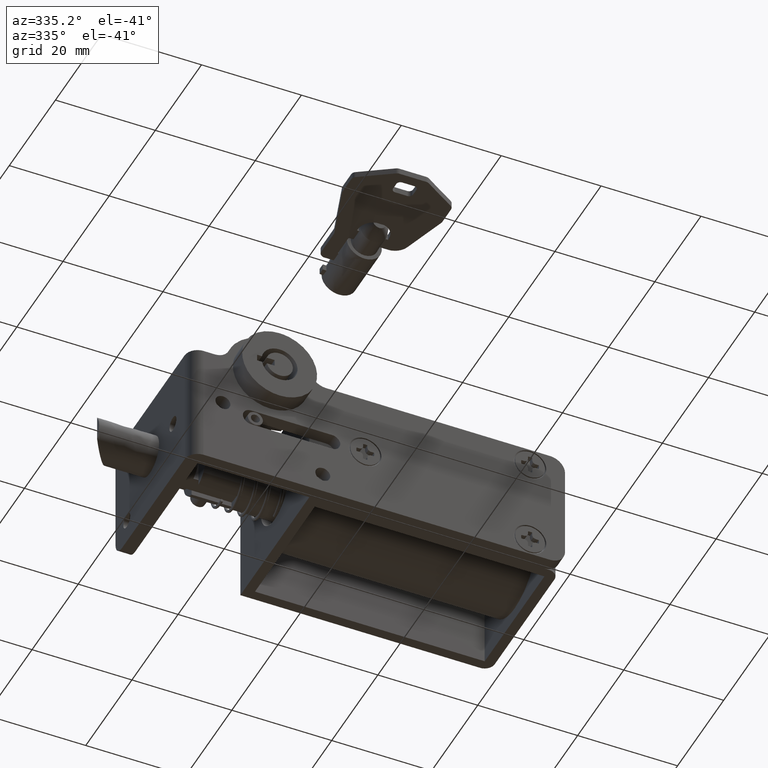
[diagram: clean part render]
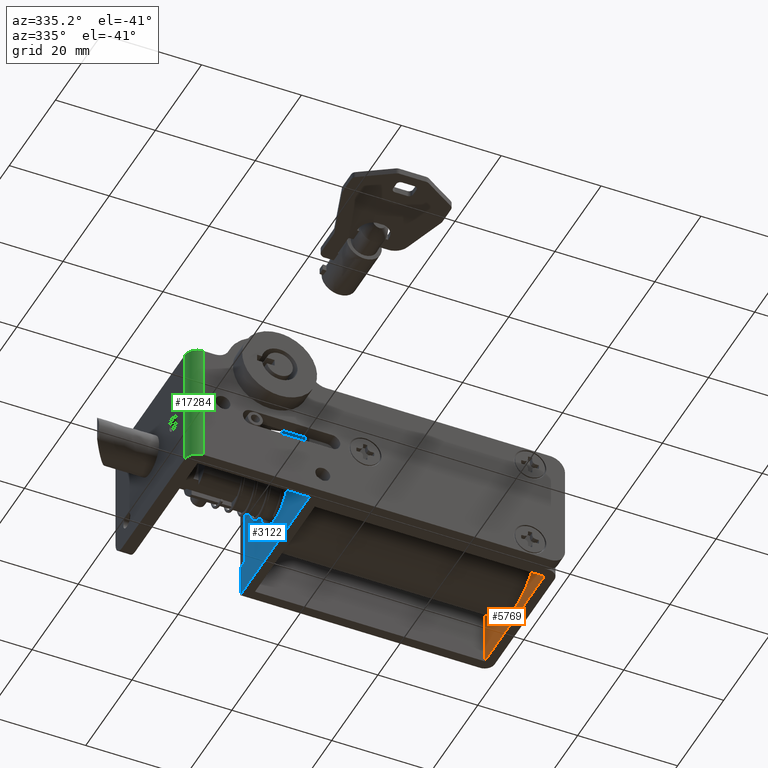
[diagram: same view with three faces highlighted in distinct colors, each labeled with its STEP entity id]
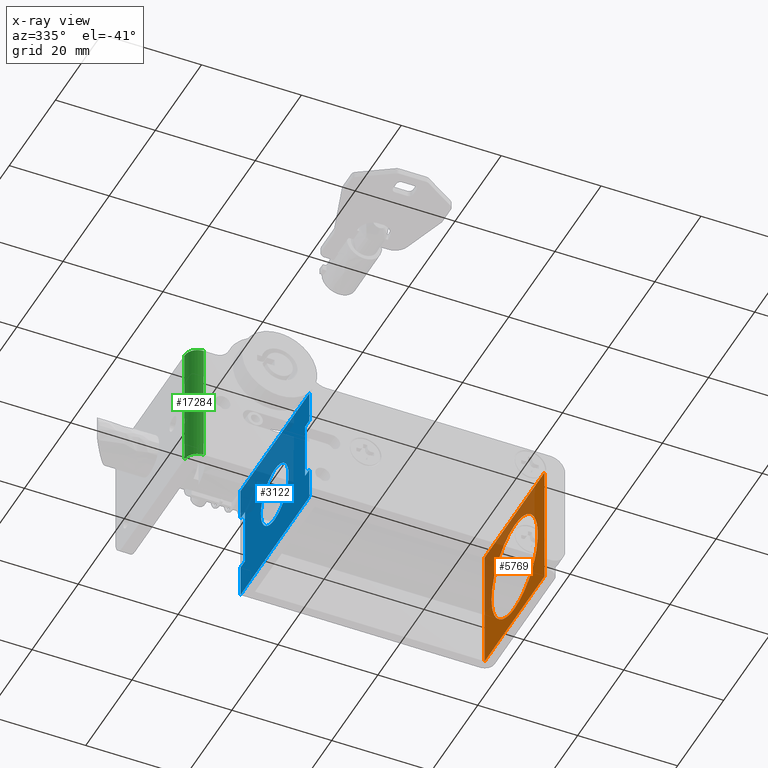
[diagram: x-ray of the same camera — body ghosted, the three highlighted faces saturated]
A machine part, auxiliary view with three faces highlighted in distinct colors.
The next image is the same camera in x-ray (body ghosted, the three faces saturated) — at least one of them is partly hidden behind the body in this view.
Their STEP definitions:

[orange] entity #5769 — the highlighted face is a freeform B-spline surface patch.
#3942=CARTESIAN_POINT('',(56.999999999999943,26.432090133933460,-6.503582999866900));
#3943=VERTEX_POINT('',#3942);
#3944=CARTESIAN_POINT('',(57.0,17.500000000000000,-21.0));
#3945=VERTEX_POINT('',#3944);
#3946=CARTESIAN_POINT('',(56.999999999999950,26.432090133933457,-6.503582999866900));
#3947=CARTESIAN_POINT('',(57.0,27.500000000000004,-8.624975917436483));
#3948=CARTESIAN_POINT('',(57.0,27.500000000000000,-11.0));
#3949=CARTESIAN_POINT('',(57.000000000000014,27.500000000000004,-21.000000000000004));
#3950=CARTESIAN_POINT('',(57.0,17.500000000000000,-21.0));
#3958=(BOUNDED_CURVE()B_SPLINE_CURVE(2,(#3946,#3947,#3948,#3949,#3950),.UNSPECIFIED.,.F.,.U.)B_SPLINE_CURVE_WITH_KNOTS((3,2,3),(0.173551018251342,0.250000000000000,0.500000000000000),.UNSPECIFIED.)CURVE()GEOMETRIC_REPRESENTATION_ITEM()RATIONAL_B_SPLINE_CURVE((0.875646456116485,0.910434446642498,1.0,0.707106781186548,1.0))REPRESENTATION_ITEM(''));
#3959=EDGE_CURVE('',#3943,#3945,#3958,.T.);
#3961=CARTESIAN_POINT('',(57.0,8.108479940217901,-14.435018335716411));
#3962=VERTEX_POINT('',#3961);
#3963=CARTESIAN_POINT('',(57.0,17.500000000000000,-21.0));
#3964=CARTESIAN_POINT('',(57.000000000000007,10.509670828051467,-20.999999999999996));
#3965=CARTESIAN_POINT('',(57.000000000000028,8.108479940217784,-14.435018335716451));
#3973=(BOUNDED_CURVE()B_SPLINE_CURVE(2,(#3963,#3964,#3965),.UNSPECIFIED.,.F.,.U.)B_SPLINE_CURVE_WITH_KNOTS((3,3),(0.500000000000000,0.691652643156856),.UNSPECIFIED.)CURVE()GEOMETRIC_REPRESENTATION_ITEM()RATIONAL_B_SPLINE_CURVE((1.0,0.775464961806730,0.895191792021986))REPRESENTATION_ITEM(''));
#3974=EDGE_CURVE('',#3945,#3962,#3973,.T.);
#4045=CARTESIAN_POINT('',(57.0,17.500000000000000,-0.999999999999999));
#4046=VERTEX_POINT('',#4045);
#4047=CARTESIAN_POINT('',(57.0,17.500000000000000,-0.999999999999999));
#4048=CARTESIAN_POINT('',(57.000000000000007,23.661584710109878,-0.999999999999999));
#4049=CARTESIAN_POINT('',(56.999999999999943,26.432090133933464,-6.503582999866900));
#4057=(BOUNDED_CURVE()B_SPLINE_CURVE(2,(#4047,#4048,#4049),.UNSPECIFIED.,.F.,.U.)B_SPLINE_CURVE_WITH_KNOTS((3,3),(0.0,0.173551018251342),.UNSPECIFIED.)CURVE()GEOMETRIC_REPRESENTATION_ITEM()RATIONAL_B_SPLINE_CURVE((1.0,0.796672334544049,0.875646456116486))REPRESENTATION_ITEM(''));
#4058=EDGE_CURVE('',#4046,#3943,#4057,.T.);
#4092=CARTESIAN_POINT('',(57.000000000000028,8.108479940217784,-14.435018335716451));
#4093=CARTESIAN_POINT('',(57.000000000000014,7.500000000000003,-12.771402306331126));
#4094=CARTESIAN_POINT('',(57.0,7.500000000000002,-11.0));
#4095=CARTESIAN_POINT('',(57.000000000000014,7.500000000000003,-0.999999999999999));
#4096=CARTESIAN_POINT('',(57.0,17.500000000000000,-0.999999999999999));
#4104=(BOUNDED_CURVE()B_SPLINE_CURVE(2,(#4092,#4093,#4094,#4095,#4096),.UNSPECIFIED.,.F.,.U.)B_SPLINE_CURVE_WITH_KNOTS((3,2,3),(0.691652643156856,0.750000000000000,1.0),.UNSPECIFIED.)CURVE()GEOMETRIC_REPRESENTATION_ITEM()RATIONAL_B_SPLINE_CURVE((0.895191792021986,0.931641819379818,1.0,0.707106781186548,1.0))REPRESENTATION_ITEM(''));
#4105=EDGE_CURVE('',#3962,#4046,#4104,.T.);
#5482=CARTESIAN_POINT('',(57.0,30.500000000000000,1.499999999999946));
#5483=VERTEX_POINT('',#5482);
#5489=CARTESIAN_POINT('',(57.0,4.600000000000110,1.499999999999946));
#5490=VERTEX_POINT('',#5489);
#5491=CARTESIAN_POINT('',(57.0,30.500000000000000,1.499999999999946));
#5492=CARTESIAN_POINT('',(57.0,4.600000000000110,1.499999999999946));
#5493=QUASI_UNIFORM_CURVE('',1,(#5491,#5492),.UNSPECIFIED.,.F.,.U.);
#5494=EDGE_CURVE('',#5483,#5490,#5493,.T.);
#5517=CARTESIAN_POINT('',(57.0,4.600000000000110,-23.500000000000000));
#5518=VERTEX_POINT('',#5517);
#5524=CARTESIAN_POINT('',(57.0,30.500000000000000,-23.500000000000000));
#5525=VERTEX_POINT('',#5524);
#5526=CARTESIAN_POINT('',(57.0,30.500000000000000,-23.500000000000000));
#5527=CARTESIAN_POINT('',(57.0,4.600000000000110,-23.500000000000000));
#5528=QUASI_UNIFORM_CURVE('',1,(#5526,#5527),.UNSPECIFIED.,.F.,.U.);
#5529=EDGE_CURVE('',#5525,#5518,#5528,.T.);
#5657=CARTESIAN_POINT('',(57.0,4.600000000000110,-23.500000000000000));
#5658=CARTESIAN_POINT('',(57.0,4.600000000000110,1.499999999999946));
#5659=QUASI_UNIFORM_CURVE('',1,(#5657,#5658),.UNSPECIFIED.,.F.,.U.);
#5660=EDGE_CURVE('',#5518,#5490,#5659,.T.);
#5675=CARTESIAN_POINT('',(57.0,30.500000000000000,-23.500000000000000));
#5676=CARTESIAN_POINT('',(57.0,30.500000000000000,1.499999999999946));
#5677=QUASI_UNIFORM_CURVE('',1,(#5675,#5676),.UNSPECIFIED.,.F.,.U.);
#5678=EDGE_CURVE('',#5525,#5483,#5677,.T.);
#5752=CARTESIAN_POINT('',(57.0,31.793704949800770,-24.748749951545150));
#5753=CARTESIAN_POINT('',(57.0,3.306294355507206,-24.748749951545150));
#5754=CARTESIAN_POINT('',(57.0,31.793704949800770,2.748750622097347));
#5755=CARTESIAN_POINT('',(57.0,3.306294355507206,2.748750622097347));
#5756=B_SPLINE_SURFACE_WITH_KNOTS('',1,1,((#5752,#5754),(#5753,#5755)),.UNSPECIFIED.,.F.,.F.,.U.,(2,2),(2,2),(0.0,28.487410594293561),(0.0,27.497500573642501),.UNSPECIFIED.);
#5757=ORIENTED_EDGE('',*,*,#5494,.F.);
#5758=ORIENTED_EDGE('',*,*,#5678,.F.);
#5759=ORIENTED_EDGE('',*,*,#5529,.T.);
#5760=ORIENTED_EDGE('',*,*,#5660,.T.);
#5761=EDGE_LOOP('',(#5757,#5758,#5759,#5760));
#5762=FACE_OUTER_BOUND('',#5761,.T.);
#5763=ORIENTED_EDGE('',*,*,#3974,.F.);
#5764=ORIENTED_EDGE('',*,*,#3959,.F.);
#5765=ORIENTED_EDGE('',*,*,#4058,.F.);
#5766=ORIENTED_EDGE('',*,*,#4105,.F.);
#5767=EDGE_LOOP('',(#5763,#5764,#5765,#5766));
#5768=FACE_BOUND('',#5767,.T.);
#5769=ADVANCED_FACE('',(#5762,#5768),#5756,.T.);

[blue] entity #3122 — the highlighted face is a freeform B-spline surface patch.
#2641=CARTESIAN_POINT('',(8.999999999999911,13.916806431174500,-6.263536642755117));
#2642=VERTEX_POINT('',#2641);
#2643=CARTESIAN_POINT('',(9.000000000000231,17.600000000000001,-4.999999999999999));
#2644=VERTEX_POINT('',#2643);
#2645=CARTESIAN_POINT('',(8.999999999999911,13.916806431174498,-6.263536642755117));
#2646=CARTESIAN_POINT('',(9.000000000000231,15.541672161713542,-5.0));
#2647=CARTESIAN_POINT('',(9.000000000000231,17.600000000000001,-4.999999999999999));
#2655=(BOUNDED_CURVE()B_SPLINE_CURVE(2,(#2645,#2646,#2647),.UNSPECIFIED.,.F.,.U.)B_SPLINE_CURVE_WITH_KNOTS((3,3),(0.893802332807051,1.0),.UNSPECIFIED.)CURVE()GEOMETRIC_REPRESENTATION_ITEM()RATIONAL_B_SPLINE_CURVE((0.856866858482999,0.875581693701510,1.0))REPRESENTATION_ITEM(''));
#2656=EDGE_CURVE('',#2642,#2644,#2655,.T.);
#2658=CARTESIAN_POINT('',(9.000000000000231,17.600000000000001,-17.0));
#2659=VERTEX_POINT('',#2658);
#2660=CARTESIAN_POINT('',(9.000000000000231,17.600000000000001,-4.999999999999999));
#2661=CARTESIAN_POINT('',(9.000000000000231,23.599999999999998,-4.999999999999998));
#2662=CARTESIAN_POINT('',(9.000000000000231,23.600000000000001,-11.0));
#2663=CARTESIAN_POINT('',(9.000000000000231,23.599999999999998,-17.000000000000004));
#2664=CARTESIAN_POINT('',(9.000000000000231,17.600000000000001,-17.0));
#2672=(BOUNDED_CURVE()B_SPLINE_CURVE(2,(#2660,#2661,#2662,#2663,#2664),.UNSPECIFIED.,.F.,.U.)B_SPLINE_CURVE_WITH_KNOTS((3,2,3),(0.0,0.250000000000000,0.500000000000000),.UNSPECIFIED.)CURVE()GEOMETRIC_REPRESENTATION_ITEM()RATIONAL_B_SPLINE_CURVE((1.0,0.707106781186548,1.0,0.707106781186548,1.0))REPRESENTATION_ITEM(''));
#2673=EDGE_CURVE('',#2644,#2659,#2672,.T.);
#2675=CARTESIAN_POINT('',(9.000000000000203,13.320496997909050,-15.205455273224800));
#2676=VERTEX_POINT('',#2675);
#2677=CARTESIAN_POINT('',(9.000000000000231,17.600000000000001,-17.0));
#2678=CARTESIAN_POINT('',(9.000000000000231,15.083990674149820,-17.0));
#2679=CARTESIAN_POINT('',(9.000000000000203,13.320496997909043,-15.205455273224807));
#2687=(BOUNDED_CURVE()B_SPLINE_CURVE(2,(#2677,#2678,#2679),.UNSPECIFIED.,.F.,.U.)B_SPLINE_CURVE_WITH_KNOTS((3,3),(0.500000000000000,0.626316779633238),.UNSPECIFIED.)CURVE()GEOMETRIC_REPRESENTATION_ITEM()RATIONAL_B_SPLINE_CURVE((1.0,0.852010687292286,0.853569641795569))REPRESENTATION_ITEM(''));
#2688=EDGE_CURVE('',#2659,#2676,#2687,.T.);
#2761=CARTESIAN_POINT('',(9.000000000000203,13.320496997909054,-15.205455273224805));
#2762=CARTESIAN_POINT('',(9.000000000000231,11.600000000000000,-13.454664296978295));
#2763=CARTESIAN_POINT('',(9.000000000000231,11.600000000000000,-11.0));
#2764=CARTESIAN_POINT('',(9.000000000000231,11.600000000000003,-8.065143855538372));
#2765=CARTESIAN_POINT('',(8.999999999999911,13.916806431174498,-6.263536642755117));
#2773=(BOUNDED_CURVE()B_SPLINE_CURVE(2,(#2761,#2762,#2763,#2764,#2765),.UNSPECIFIED.,.F.,.U.)B_SPLINE_CURVE_WITH_KNOTS((3,2,3),(0.626316779633239,0.750000000000000,0.893802332807051),.UNSPECIFIED.)CURVE()GEOMETRIC_REPRESENTATION_ITEM()RATIONAL_B_SPLINE_CURVE((0.853569641795569,0.855096093894263,1.0,0.831525087485038,0.856866858482999))REPRESENTATION_ITEM(''));
#2774=EDGE_CURVE('',#2676,#2642,#2773,.T.);
#2816=CARTESIAN_POINT('',(9.000000000000199,4.500000000000090,-5.100000000000001));
#2817=VERTEX_POINT('',#2816);
#2823=CARTESIAN_POINT('',(9.000000000000190,4.500000000000000,-16.899999999999999));
#2824=VERTEX_POINT('',#2823);
#2825=CARTESIAN_POINT('',(9.000000000000199,4.500000000000090,-5.100000000000001));
#2826=CARTESIAN_POINT('',(9.000000000000190,4.500000000000000,-16.899999999999999));
#2827=QUASI_UNIFORM_CURVE('',1,(#2825,#2826),.UNSPECIFIED.,.F.,.U.);
#2828=EDGE_CURVE('',#2817,#2824,#2827,.T.);
#2850=CARTESIAN_POINT('',(9.000000000000190,2.600000000000160,-16.899999999999999));
#2851=VERTEX_POINT('',#2850);
#2865=CARTESIAN_POINT('',(9.000000000000190,2.600000000000160,-16.899999999999999));
#2866=CARTESIAN_POINT('',(9.000000000000190,4.500000000000000,-16.899999999999999));
#2867=QUASI_UNIFORM_CURVE('',1,(#2865,#2866),.UNSPECIFIED.,.F.,.U.);
#2868=EDGE_CURVE('',#2851,#2824,#2867,.T.);
#2880=CARTESIAN_POINT('',(9.000000000000190,2.600000000000160,-5.100000000000001));
#2881=VERTEX_POINT('',#2880);
#2887=CARTESIAN_POINT('',(9.000000000000190,2.600000000000160,-5.100000000000001));
#2888=CARTESIAN_POINT('',(9.000000000000199,4.500000000000090,-5.100000000000001));
#2889=QUASI_UNIFORM_CURVE('',1,(#2887,#2888),.UNSPECIFIED.,.F.,.U.);
#2890=EDGE_CURVE('',#2881,#2817,#2889,.T.);
#2908=CARTESIAN_POINT('',(9.000000000000199,30.500000000000000,-5.100000000000001));
#2909=VERTEX_POINT('',#2908);
#2922=CARTESIAN_POINT('',(9.000000000000199,30.500000000000000,-16.899999999999999));
#2923=VERTEX_POINT('',#2922);
#2929=CARTESIAN_POINT('',(9.000000000000199,30.500000000000000,-5.100000000000001));
#2930=CARTESIAN_POINT('',(9.000000000000199,30.500000000000000,-16.899999999999999));
#2931=QUASI_UNIFORM_CURVE('',1,(#2929,#2930),.UNSPECIFIED.,.F.,.U.);
#2932=EDGE_CURVE('',#2909,#2923,#2931,.T.);
#2950=CARTESIAN_POINT('',(9.000000000000199,32.500000000000000,-16.899999999999999));
#2951=VERTEX_POINT('',#2950);
#2957=CARTESIAN_POINT('',(9.000000000000199,32.500000000000000,-16.899999999999999));
#2958=CARTESIAN_POINT('',(9.000000000000199,30.500000000000000,-16.899999999999999));
#2959=QUASI_UNIFORM_CURVE('',1,(#2957,#2958),.UNSPECIFIED.,.F.,.U.);
#2960=EDGE_CURVE('',#2951,#2923,#2959,.T.);
#2971=CARTESIAN_POINT('',(9.000000000000199,32.500000000000000,-5.100000000000001));
#2972=VERTEX_POINT('',#2971);
#2973=CARTESIAN_POINT('',(9.000000000000199,32.500000000000000,-5.100000000000001));
#2974=CARTESIAN_POINT('',(9.000000000000199,30.500000000000000,-5.100000000000001));
#2975=QUASI_UNIFORM_CURVE('',1,(#2973,#2974),.UNSPECIFIED.,.F.,.U.);
#2976=EDGE_CURVE('',#2972,#2909,#2975,.T.);
#3007=CARTESIAN_POINT('',(9.000000000000199,2.600000000000110,-23.500000000000000));
#3008=VERTEX_POINT('',#3007);
#3014=CARTESIAN_POINT('',(9.000000000000199,32.500000000000000,-23.500000000000000));
#3015=VERTEX_POINT('',#3014);
#3016=CARTESIAN_POINT('',(9.000000000000199,2.600000000000110,-23.500000000000000));
#3017=CARTESIAN_POINT('',(9.000000000000199,32.500000000000000,-23.500000000000000));
#3018=QUASI_UNIFORM_CURVE('',1,(#3016,#3017),.UNSPECIFIED.,.F.,.U.);
#3019=EDGE_CURVE('',#3008,#3015,#3018,.T.);
#3043=CARTESIAN_POINT('',(9.000000000000199,32.500000000000000,1.499999999999946));
#3044=VERTEX_POINT('',#3043);
#3050=CARTESIAN_POINT('',(9.000000000000199,2.600000000000110,1.499999999999946));
#3051=VERTEX_POINT('',#3050);
#3052=CARTESIAN_POINT('',(9.000000000000199,2.600000000000110,1.499999999999946));
#3053=CARTESIAN_POINT('',(9.000000000000199,32.500000000000000,1.499999999999946));
#3054=QUASI_UNIFORM_CURVE('',1,(#3052,#3053),.UNSPECIFIED.,.F.,.U.);
#3055=EDGE_CURVE('',#3051,#3044,#3054,.T.);
#3077=CARTESIAN_POINT('',(9.000000000000199,32.500000000000000,-16.899999999999999));
#3078=CARTESIAN_POINT('',(9.000000000000199,32.500000000000000,-23.500000000000000));
#3079=QUASI_UNIFORM_CURVE('',1,(#3077,#3078),.UNSPECIFIED.,.F.,.U.);
#3080=EDGE_CURVE('',#2951,#3015,#3079,.T.);
#3085=CARTESIAN_POINT('',(9.000000000000199,1.106494777272312,-24.748749951545150));
#3086=CARTESIAN_POINT('',(9.000000000000199,1.106494777272312,2.748750622097349));
#3087=CARTESIAN_POINT('',(9.000000000000199,33.993505757381463,-24.748749951545150));
#3088=CARTESIAN_POINT('',(9.000000000000199,33.993505757381463,2.748750622097349));
#3089=B_SPLINE_SURFACE_WITH_KNOTS('',1,1,((#3085,#3087),(#3086,#3088)),.UNSPECIFIED.,.F.,.F.,.U.,(2,2),(2,2),(0.0,27.497500573642490),(0.0,32.887010980109153),.UNSPECIFIED.);
#3090=ORIENTED_EDGE('',*,*,#2890,.F.);
#3091=CARTESIAN_POINT('',(9.000000000000199,2.600000000000110,1.499999999999946));
#3092=CARTESIAN_POINT('',(9.000000000000190,2.600000000000160,-5.100000000000001));
#3093=QUASI_UNIFORM_CURVE('',1,(#3091,#3092),.UNSPECIFIED.,.F.,.U.);
#3094=EDGE_CURVE('',#3051,#2881,#3093,.T.);
#3095=ORIENTED_EDGE('',*,*,#3094,.F.);
#3096=ORIENTED_EDGE('',*,*,#3055,.T.);
#3097=CARTESIAN_POINT('',(9.000000000000199,32.500000000000000,1.499999999999946));
#3098=CARTESIAN_POINT('',(9.000000000000199,32.500000000000000,-5.100000000000001));
#3099=QUASI_UNIFORM_CURVE('',1,(#3097,#3098),.UNSPECIFIED.,.F.,.U.);
#3100=EDGE_CURVE('',#3044,#2972,#3099,.T.);
#3101=ORIENTED_EDGE('',*,*,#3100,.T.);
#3102=ORIENTED_EDGE('',*,*,#2976,.T.);
#3103=ORIENTED_EDGE('',*,*,#2932,.T.);
#3104=ORIENTED_EDGE('',*,*,#2960,.F.);
#3105=ORIENTED_EDGE('',*,*,#3080,.T.);
#3106=ORIENTED_EDGE('',*,*,#3019,.F.);
#3107=CARTESIAN_POINT('',(9.000000000000190,2.600000000000160,-16.899999999999999));
#3108=CARTESIAN_POINT('',(9.000000000000199,2.600000000000110,-23.500000000000000));
#3109=QUASI_UNIFORM_CURVE('',1,(#3107,#3108),.UNSPECIFIED.,.F.,.U.);
#3110=EDGE_CURVE('',#2851,#3008,#3109,.T.);
#3111=ORIENTED_EDGE('',*,*,#3110,.F.);
#3112=ORIENTED_EDGE('',*,*,#2868,.T.);
#3113=ORIENTED_EDGE('',*,*,#2828,.F.);
#3114=EDGE_LOOP('',(#3090,#3095,#3096,#3101,#3102,#3103,#3104,#3105,#3106,#3111,#3112,#3113));
#3115=FACE_OUTER_BOUND('',#3114,.T.);
#3116=ORIENTED_EDGE('',*,*,#2673,.F.);
#3117=ORIENTED_EDGE('',*,*,#2656,.F.);
#3118=ORIENTED_EDGE('',*,*,#2774,.F.);
#3119=ORIENTED_EDGE('',*,*,#2688,.F.);
#3120=EDGE_LOOP('',(#3116,#3117,#3118,#3119));
#3121=FACE_BOUND('',#3120,.T.);
#3122=ADVANCED_FACE('',(#3115,#3121),#3089,.T.);

[green] entity #17284 — the highlighted face is a freeform B-spline surface patch.
#17224=CARTESIAN_POINT('',(-13.331939934399530,0.000890955063597,-24.125000000000000));
#17225=CARTESIAN_POINT('',(-13.331939934399530,0.000890955063597,2.140625000000000));
#17226=CARTESIAN_POINT('',(-16.168369730344711,-0.073383573109535,-24.125000000000007));
#17227=CARTESIAN_POINT('',(-16.168369730344711,-0.073383573109535,2.140625000000000));
#17228=CARTESIAN_POINT('',(-15.995150475896860,2.758726202790665,-24.125000000000000));
#17229=CARTESIAN_POINT('',(-15.995150475896860,2.758726202790665,2.140625000000000));
#17237=(BOUNDED_SURFACE()B_SPLINE_SURFACE(1,2,((#17224,#17226,#17228),(#17225,#17227,#17229)),.UNSPECIFIED.,.F.,.F.,.U.)B_SPLINE_SURFACE_WITH_KNOTS((2,2),(3,3),(0.0,26.265625000000000),(0.0,4.576109521275063),.UNSPECIFIED.)GEOMETRIC_REPRESENTATION_ITEM()RATIONAL_B_SPLINE_SURFACE(((1.0,0.675590207615660,1.0),(1.0,0.675590207615660,1.0)))REPRESENTATION_ITEM('')SURFACE());
#17238=CARTESIAN_POINT('',(-13.400000000000000,0.0,-23.500000000000000));
#17239=VERTEX_POINT('',#17238);
#17240=CARTESIAN_POINT('',(-16.0,2.600000000000045,-23.500000000000000));
#17241=VERTEX_POINT('',#17240);
#17242=CARTESIAN_POINT('',(-13.400000000000000,4.510281E-014,-23.500000000000000));
#17243=CARTESIAN_POINT('',(-15.999999999999998,4.510281E-014,-23.500000000000004));
#17244=CARTESIAN_POINT('',(-16.0,2.600000000000045,-23.500000000000000));
#17252=(BOUNDED_CURVE()B_SPLINE_CURVE(2,(#17242,#17243,#17244),.UNSPECIFIED.,.F.,.U.)CURVE()GEOMETRIC_REPRESENTATION_ITEM()QUASI_UNIFORM_CURVE()RATIONAL_B_SPLINE_CURVE((1.0,0.707106781186548,1.0))REPRESENTATION_ITEM(''));
#17253=EDGE_CURVE('',#17239,#17241,#17252,.T.);
#17254=ORIENTED_EDGE('',*,*,#17253,.F.);
#17255=CARTESIAN_POINT('',(-13.400000000000000,0.0,1.500000000000000));
#17256=VERTEX_POINT('',#17255);
#17257=CARTESIAN_POINT('',(-13.400000000000000,0.0,1.500000000000000));
#17258=CARTESIAN_POINT('',(-13.400000000000000,0.0,-23.500000000000000));
#17259=QUASI_UNIFORM_CURVE('',1,(#17257,#17258),.UNSPECIFIED.,.F.,.U.);
#17260=EDGE_CURVE('',#17256,#17239,#17259,.T.);
#17261=ORIENTED_EDGE('',*,*,#17260,.F.);
#17262=CARTESIAN_POINT('',(-16.0,2.600000000000045,1.500000000000000));
#17263=VERTEX_POINT('',#17262);
#17264=CARTESIAN_POINT('',(-16.0,2.600000000000045,1.500000000000000));
#17265=CARTESIAN_POINT('',(-15.999999999999998,4.510281E-014,1.500000000000000));
#17266=CARTESIAN_POINT('',(-13.400000000000000,4.510281E-014,1.500000000000000));
#17274=(BOUNDED_CURVE()B_SPLINE_CURVE(2,(#17264,#17265,#17266),.UNSPECIFIED.,.F.,.U.)CURVE()GEOMETRIC_REPRESENTATION_ITEM()QUASI_UNIFORM_CURVE()RATIONAL_B_SPLINE_CURVE((1.0,0.707106781186548,1.0))REPRESENTATION_ITEM(''));
#17275=EDGE_CURVE('',#17263,#17256,#17274,.T.);
#17276=ORIENTED_EDGE('',*,*,#17275,.F.);
#17277=CARTESIAN_POINT('',(-16.0,2.600000000000045,-23.500000000000000));
#17278=CARTESIAN_POINT('',(-16.0,2.600000000000045,1.500000000000000));
#17279=QUASI_UNIFORM_CURVE('',1,(#17277,#17278),.UNSPECIFIED.,.F.,.U.);
#17280=EDGE_CURVE('',#17241,#17263,#17279,.T.);
#17281=ORIENTED_EDGE('',*,*,#17280,.F.);
#17282=EDGE_LOOP('',(#17254,#17261,#17276,#17281));
#17283=FACE_OUTER_BOUND('',#17282,.T.);
#17284=ADVANCED_FACE('',(#17283),#17237,.T.);